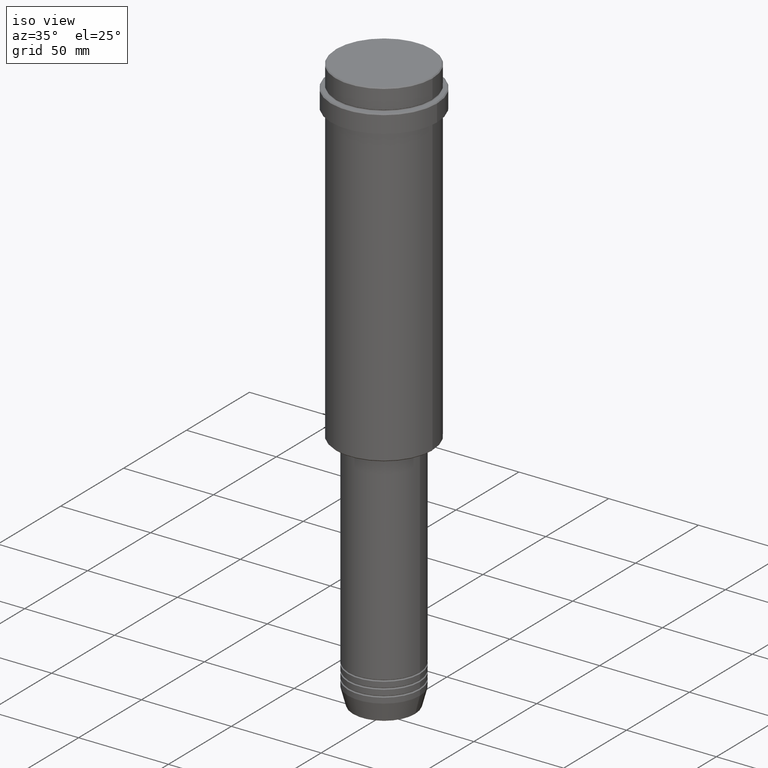
[diagram: clean part render]
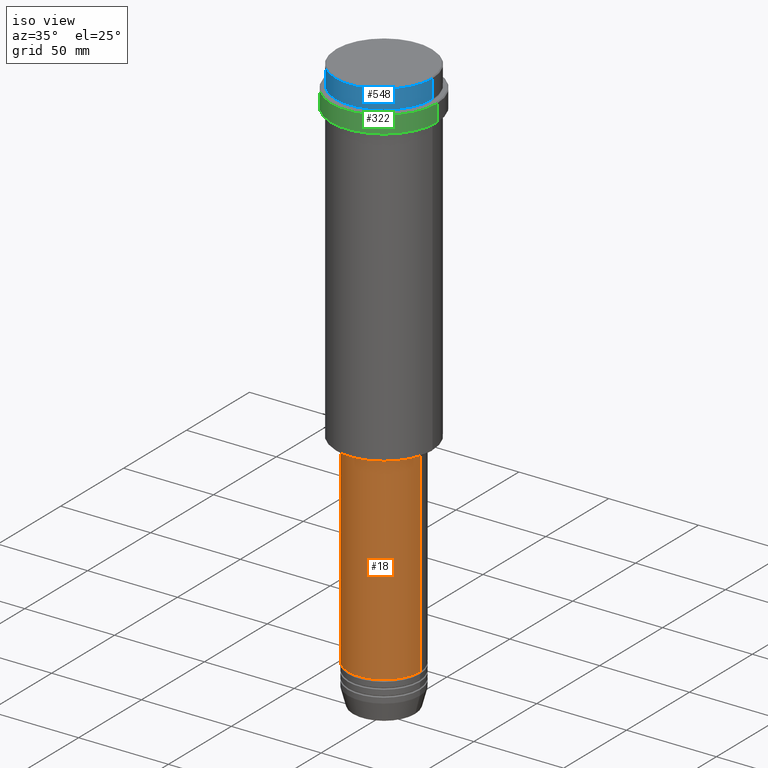
[diagram: same view with three faces highlighted in distinct colors, each labeled with its STEP entity id]
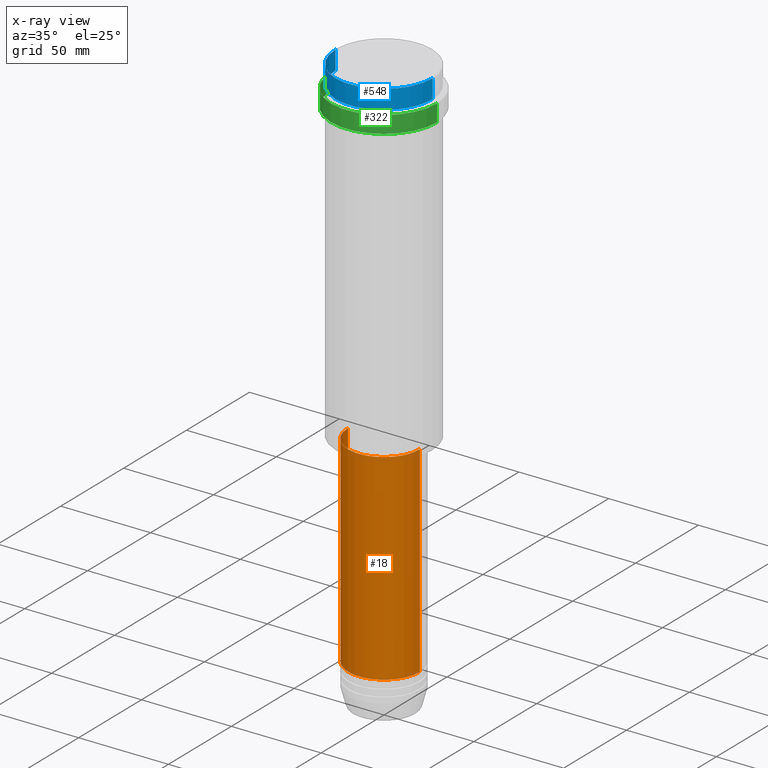
[diagram: x-ray of the same camera — body ghosted, the three highlighted faces saturated]
A machine part, iso view with three faces highlighted in distinct colors.
The next image is the same camera in x-ray (body ghosted, the three faces saturated) — at least one of them is partly hidden behind the body in this view.
Their STEP definitions:

[orange] entity #18 — the highlighted cylindrical surface (partial cylindrical patch) has radius 20 mm, axis along (-0, -0, 1).
#18 = ADVANCED_FACE ( 'NONE', ( #1055 ), #395, .T. ) ;
#23 = DIRECTION ( 'NONE',  ( -0.000000000000000000, -0.000000000000000000, 1.000000000000000000 ) ) ;
#26 = CARTESIAN_POINT ( 'NONE',  ( -20.00000000000000000, 2.449293598294706513E-15, -188.9999999999999147 ) ) ;
#72 = CARTESIAN_POINT ( 'NONE',  ( 0.000000000000000000, 0.000000000000000000, 0.000000000000000000 ) ) ;
#114 = CARTESIAN_POINT ( 'NONE',  ( 20.00000000000000000, 0.000000000000000000, -188.9999999999999147 ) ) ;
#115 = EDGE_CURVE ( 'NONE', #674, #339, #235, .T. ) ;
#235 = CIRCLE ( 'NONE', #1044, 20.00000000000000000 ) ;
#339 = VERTEX_POINT ( 'NONE', #114 ) ;
#351 = CARTESIAN_POINT ( 'NONE',  ( -20.00000000000000000, 2.449293598294706513E-15, -300.9999999999998863 ) ) ;
#395 = CYLINDRICAL_SURFACE ( 'NONE', #486, 20.00000000000000000 ) ;
#486 = AXIS2_PLACEMENT_3D ( 'NONE', #72, #1399, #1297 ) ;
#489 = CARTESIAN_POINT ( 'NONE',  ( 0.000000000000000000, 0.000000000000000000, -300.9999999999998863 ) ) ;
#501 = VERTEX_POINT ( 'NONE', #351 ) ;
#504 = DIRECTION ( 'NONE',  ( -0.000000000000000000, -0.000000000000000000, 1.000000000000000000 ) ) ;
#506 = EDGE_CURVE ( 'NONE', #689, #339, #899, .T. ) ;
#536 = ORIENTED_EDGE ( 'NONE', *, *, #800, .F. ) ;
#674 = VERTEX_POINT ( 'NONE', #26 ) ;
#676 = DIRECTION ( 'NONE',  ( -0.000000000000000000, -0.000000000000000000, 1.000000000000000000 ) ) ;
#689 = VERTEX_POINT ( 'NONE', #708 ) ;
#691 = DIRECTION ( 'NONE',  ( 1.000000000000000000, 0.000000000000000000, 0.000000000000000000 ) ) ;
#708 = CARTESIAN_POINT ( 'NONE',  ( 20.00000000000000000, 0.000000000000000000, -300.9999999999998863 ) ) ;
#735 = ORIENTED_EDGE ( 'NONE', *, *, #115, .F. ) ;
#762 = DIRECTION ( 'NONE',  ( -0.000000000000000000, -0.000000000000000000, 1.000000000000000000 ) ) ;
#779 = ORIENTED_EDGE ( 'NONE', *, *, #506, .T. ) ;
#800 = EDGE_CURVE ( 'NONE', #501, #674, #1084, .T. ) ;
#899 = LINE ( 'NONE', #1224, #998 ) ;
#986 = CARTESIAN_POINT ( 'NONE',  ( -20.00000000000000000, 2.449293598294706513E-15, 0.000000000000000000 ) ) ;
#998 = VECTOR ( 'NONE', #23, 1000.000000000000000 ) ;
#1031 = CIRCLE ( 'NONE', #1262, 20.00000000000000000 ) ;
#1044 = AXIS2_PLACEMENT_3D ( 'NONE', #1254, #676, #691 ) ;
#1055 = FACE_OUTER_BOUND ( 'NONE', #1226, .T. ) ;
#1084 = LINE ( 'NONE', #986, #1205 ) ;
#1181 = EDGE_CURVE ( 'NONE', #501, #689, #1031, .T. ) ;
#1205 = VECTOR ( 'NONE', #762, 1000.000000000000000 ) ;
#1224 = CARTESIAN_POINT ( 'NONE',  ( 20.00000000000000000, 0.000000000000000000, 0.000000000000000000 ) ) ;
#1226 = EDGE_LOOP ( 'NONE', ( #536, #1239, #779, #735 ) ) ;
#1239 = ORIENTED_EDGE ( 'NONE', *, *, #1181, .T. ) ;
#1254 = CARTESIAN_POINT ( 'NONE',  ( 0.000000000000000000, 0.000000000000000000, -188.9999999999999147 ) ) ;
#1262 = AXIS2_PLACEMENT_3D ( 'NONE', #489, #504, #1362 ) ;
#1297 = DIRECTION ( 'NONE',  ( 1.000000000000000000, 0.000000000000000000, 0.000000000000000000 ) ) ;
#1362 = DIRECTION ( 'NONE',  ( 1.000000000000000000, 0.000000000000000000, 0.000000000000000000 ) ) ;
#1399 = DIRECTION ( 'NONE',  ( -0.000000000000000000, -0.000000000000000000, 1.000000000000000000 ) ) ;

[blue] entity #548 — the highlighted cylindrical surface (partial cylindrical patch) has radius 27 mm, axis along (-0, -0, 1).
#59 = CIRCLE ( 'NONE', #344, 27.00000000000000355 ) ;
#132 = CIRCLE ( 'NONE', #1303, 27.00000000000000355 ) ;
#133 = VERTEX_POINT ( 'NONE', #923 ) ;
#144 = EDGE_CURVE ( 'NONE', #581, #607, #1144, .T. ) ;
#170 = DIRECTION ( 'NONE',  ( -0.000000000000000000, -0.000000000000000000, 1.000000000000000000 ) ) ;
#207 = CARTESIAN_POINT ( 'NONE',  ( 0.000000000000000000, 0.000000000000000000, -11.00000000000000178 ) ) ;
#211 = EDGE_CURVE ( 'NONE', #133, #371, #934, .T. ) ;
#344 = AXIS2_PLACEMENT_3D ( 'NONE', #207, #1083, #1229 ) ;
#346 = EDGE_CURVE ( 'NONE', #581, #133, #59, .T. ) ;
#371 = VERTEX_POINT ( 'NONE', #984 ) ;
#514 = CARTESIAN_POINT ( 'NONE',  ( -27.00000000000000355, 3.306546357697854128E-15, -0.5000000000000350830 ) ) ;
#548 = ADVANCED_FACE ( 'NONE', ( #680 ), #920, .T. ) ;
#581 = VERTEX_POINT ( 'NONE', #694 ) ;
#583 = VECTOR ( 'NONE', #911, 1000.000000000000000 ) ;
#607 = VERTEX_POINT ( 'NONE', #514 ) ;
#680 = FACE_OUTER_BOUND ( 'NONE', #982, .T. ) ;
#694 = CARTESIAN_POINT ( 'NONE',  ( -27.00000000000000355, 3.306546357697854128E-15, -11.00000000000000178 ) ) ;
#700 = CARTESIAN_POINT ( 'NONE',  ( 0.000000000000000000, 0.000000000000000000, -0.5000000000000350830 ) ) ;
#714 = ORIENTED_EDGE ( 'NONE', *, *, #144, .F. ) ;
#804 = CARTESIAN_POINT ( 'NONE',  ( -27.00000000000000355, 3.306546357697854128E-15, 0.000000000000000000 ) ) ;
#911 = DIRECTION ( 'NONE',  ( -0.000000000000000000, -0.000000000000000000, 1.000000000000000000 ) ) ;
#920 = CYLINDRICAL_SURFACE ( 'NONE', #1114, 27.00000000000000355 ) ;
#923 = CARTESIAN_POINT ( 'NONE',  ( 27.00000000000000355, 0.000000000000000000, -11.00000000000000178 ) ) ;
#930 = ORIENTED_EDGE ( 'NONE', *, *, #346, .T. ) ;
#934 = LINE ( 'NONE', #975, #1349 ) ;
#975 = CARTESIAN_POINT ( 'NONE',  ( 27.00000000000000355, 0.000000000000000000, 0.000000000000000000 ) ) ;
#982 = EDGE_LOOP ( 'NONE', ( #714, #930, #1391, #1090 ) ) ;
#984 = CARTESIAN_POINT ( 'NONE',  ( 27.00000000000000355, 0.000000000000000000, -0.5000000000000350830 ) ) ;
#1032 = DIRECTION ( 'NONE',  ( 1.000000000000000000, 0.000000000000000000, 0.000000000000000000 ) ) ;
#1077 = EDGE_CURVE ( 'NONE', #371, #607, #132, .T. ) ;
#1083 = DIRECTION ( 'NONE',  ( -0.000000000000000000, -0.000000000000000000, 1.000000000000000000 ) ) ;
#1090 = ORIENTED_EDGE ( 'NONE', *, *, #1077, .T. ) ;
#1114 = AXIS2_PLACEMENT_3D ( 'NONE', #1250, #1353, #1258 ) ;
#1138 = DIRECTION ( 'NONE',  ( 0.000000000000000000, 0.000000000000000000, -1.000000000000000000 ) ) ;
#1144 = LINE ( 'NONE', #804, #583 ) ;
#1229 = DIRECTION ( 'NONE',  ( 1.000000000000000000, 0.000000000000000000, 0.000000000000000000 ) ) ;
#1250 = CARTESIAN_POINT ( 'NONE',  ( 0.000000000000000000, 0.000000000000000000, 0.000000000000000000 ) ) ;
#1258 = DIRECTION ( 'NONE',  ( 1.000000000000000000, 0.000000000000000000, 0.000000000000000000 ) ) ;
#1303 = AXIS2_PLACEMENT_3D ( 'NONE', #700, #1138, #1032 ) ;
#1349 = VECTOR ( 'NONE', #170, 1000.000000000000000 ) ;
#1353 = DIRECTION ( 'NONE',  ( -0.000000000000000000, -0.000000000000000000, 1.000000000000000000 ) ) ;
#1391 = ORIENTED_EDGE ( 'NONE', *, *, #211, .T. ) ;

[green] entity #322 — the highlighted cylindrical surface (partial cylindrical patch) has radius 29.5 mm, axis along (-0, -0, 1).
#70 = CARTESIAN_POINT ( 'NONE',  ( 0.000000000000000000, 0.000000000000000000, -22.00000000000000711 ) ) ;
#78 = CARTESIAN_POINT ( 'NONE',  ( 29.50000000000000000, 0.000000000000000000, -12.50000000000011546 ) ) ;
#98 = DIRECTION ( 'NONE',  ( -0.000000000000000000, -0.000000000000000000, 1.000000000000000000 ) ) ;
#105 = CIRCLE ( 'NONE', #1159, 29.49999999999999645 ) ;
#178 = DIRECTION ( 'NONE',  ( 1.000000000000000000, 0.000000000000000000, 0.000000000000000000 ) ) ;
#208 = VERTEX_POINT ( 'NONE', #715 ) ;
#223 = LINE ( 'NONE', #1306, #718 ) ;
#270 = DIRECTION ( 'NONE',  ( 1.000000000000000000, 0.000000000000000000, 0.000000000000000000 ) ) ;
#293 = DIRECTION ( 'NONE',  ( 0.000000000000000000, 0.000000000000000000, -1.000000000000000000 ) ) ;
#297 = EDGE_CURVE ( 'NONE', #1273, #208, #652, .T. ) ;
#322 = ADVANCED_FACE ( 'NONE', ( #730 ), #1053, .T. ) ;
#341 = EDGE_LOOP ( 'NONE', ( #1097, #733, #421, #1193 ) ) ;
#375 = DIRECTION ( 'NONE',  ( -0.000000000000000000, -0.000000000000000000, 1.000000000000000000 ) ) ;
#399 = CARTESIAN_POINT ( 'NONE',  ( 29.49999999999999645, 0.000000000000000000, -22.00000000000000711 ) ) ;
#401 = DIRECTION ( 'NONE',  ( -0.000000000000000000, -0.000000000000000000, 1.000000000000000000 ) ) ;
#406 = CARTESIAN_POINT ( 'NONE',  ( 0.000000000000000000, 0.000000000000000000, 0.000000000000000000 ) ) ;
#421 = ORIENTED_EDGE ( 'NONE', *, *, #425, .T. ) ;
#425 = EDGE_CURVE ( 'NONE', #842, #1273, #223, .T. ) ;
#456 = DIRECTION ( 'NONE',  ( -0.000000000000000000, -0.000000000000000000, 1.000000000000000000 ) ) ;
#652 = CIRCLE ( 'NONE', #1140, 29.50000000000000000 ) ;
#657 = EDGE_CURVE ( 'NONE', #1123, #842, #105, .T. ) ;
#715 = CARTESIAN_POINT ( 'NONE',  ( -29.50000000000000000, 3.612708057484691604E-15, -12.50000000000011546 ) ) ;
#718 = VECTOR ( 'NONE', #401, 1000.000000000000000 ) ;
#730 = FACE_OUTER_BOUND ( 'NONE', #341, .T. ) ;
#733 = ORIENTED_EDGE ( 'NONE', *, *, #657, .T. ) ;
#829 = DIRECTION ( 'NONE',  ( 1.000000000000000000, 0.000000000000000000, 0.000000000000000000 ) ) ;
#838 = LINE ( 'NONE', #1288, #1156 ) ;
#841 = EDGE_CURVE ( 'NONE', #1123, #208, #838, .T. ) ;
#842 = VERTEX_POINT ( 'NONE', #399 ) ;
#921 = CARTESIAN_POINT ( 'NONE',  ( -29.49999999999999645, 3.612708057484690815E-15, -22.00000000000000711 ) ) ;
#1053 = CYLINDRICAL_SURFACE ( 'NONE', #1232, 29.50000000000000000 ) ;
#1097 = ORIENTED_EDGE ( 'NONE', *, *, #841, .F. ) ;
#1123 = VERTEX_POINT ( 'NONE', #921 ) ;
#1140 = AXIS2_PLACEMENT_3D ( 'NONE', #1286, #293, #178 ) ;
#1156 = VECTOR ( 'NONE', #98, 1000.000000000000000 ) ;
#1159 = AXIS2_PLACEMENT_3D ( 'NONE', #70, #456, #270 ) ;
#1193 = ORIENTED_EDGE ( 'NONE', *, *, #297, .T. ) ;
#1232 = AXIS2_PLACEMENT_3D ( 'NONE', #406, #375, #829 ) ;
#1273 = VERTEX_POINT ( 'NONE', #78 ) ;
#1286 = CARTESIAN_POINT ( 'NONE',  ( 0.000000000000000000, 0.000000000000000000, -12.50000000000011546 ) ) ;
#1288 = CARTESIAN_POINT ( 'NONE',  ( -29.50000000000000000, 3.612708057484691604E-15, 0.000000000000000000 ) ) ;
#1306 = CARTESIAN_POINT ( 'NONE',  ( 29.50000000000000000, 0.000000000000000000, 0.000000000000000000 ) ) ;